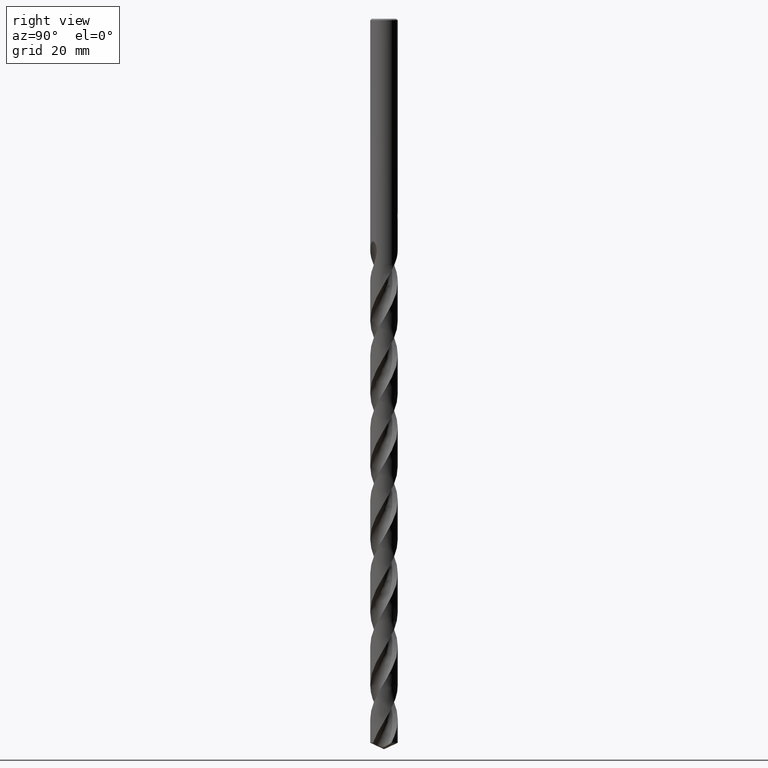
[diagram: clean part render]
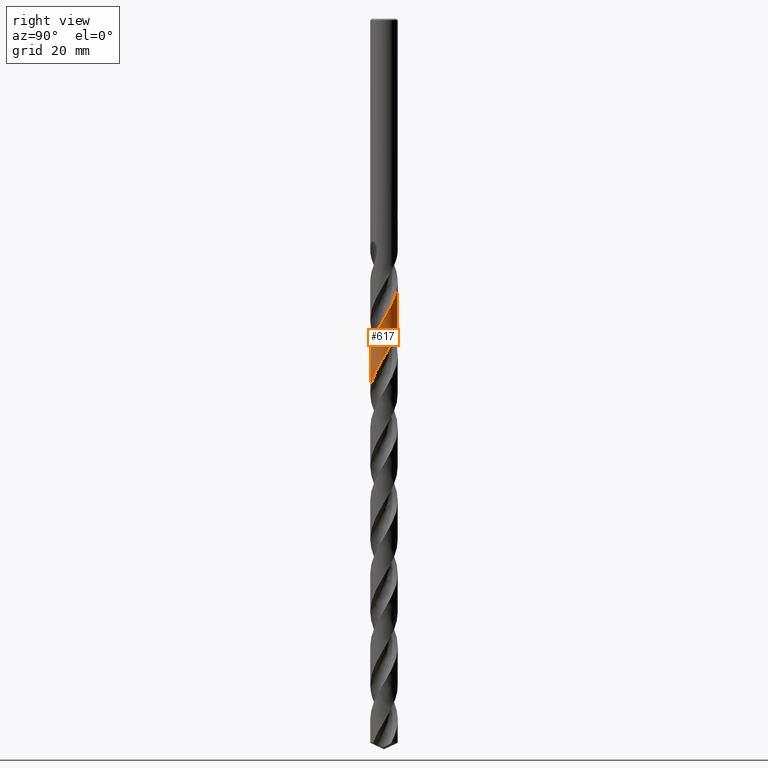
[diagram: same view with one face highlighted and labeled with its STEP entity id]
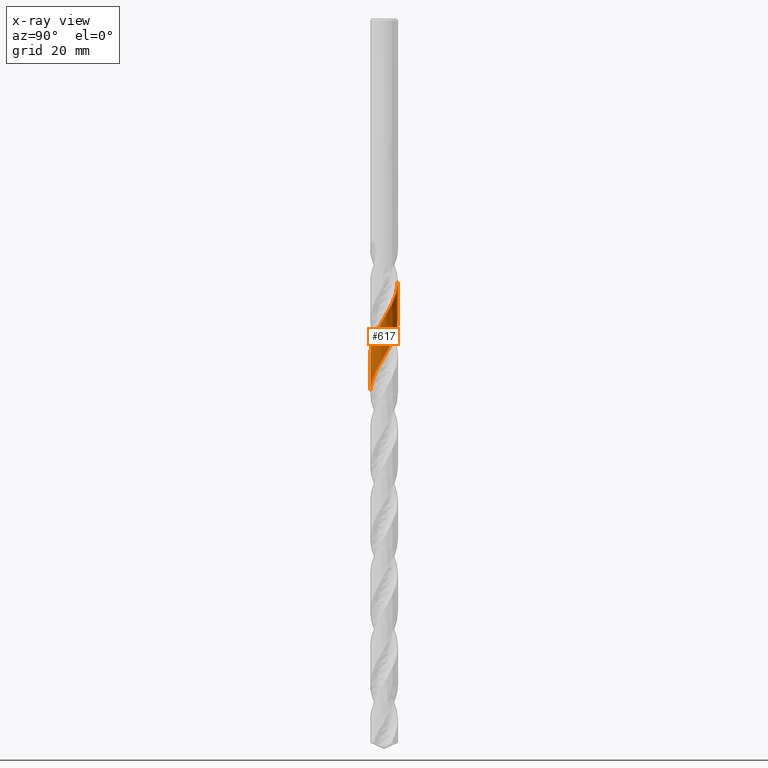
[diagram: x-ray of the same camera — body ghosted, the highlighted face saturated]
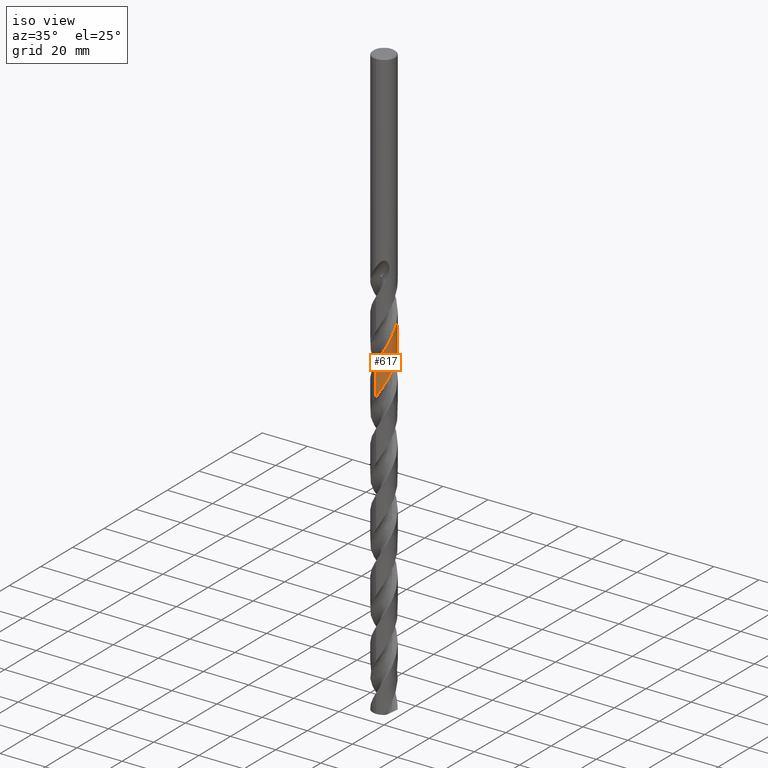
[diagram: same view with one face highlighted and labeled with its STEP entity id]
A machine part, right view. The second image highlights one B-rep face of the part: STEP entity #617.
The next image is the same camera in x-ray: the body ghosted, the highlighted face saturated — about 0% of this face is hidden behind the body in this view.
A second angle (iso view) of the same face is appended — the face is thin or edge-on in the first view.
In plain terms, the highlighted conical surface has half-angle 0 deg.
Its self-contained STEP definition (entity closure, byte-faithful):
#409=VERTEX_POINT('',#991);
#465=EDGE_CURVE('',#487,#759,#1052,.T.);
#487=VERTEX_POINT('',#1076);
#491=EDGE_CURVE('',#487,#717,#1081,.T.);
#617=ADVANCED_FACE('',(#1222),#1223,.T.);
#717=VERTEX_POINT('',#1329);
#759=VERTEX_POINT('',#1373);
#787=EDGE_CURVE('',#409,#759,#1403,.T.);
#793=EDGE_CURVE('',#409,#717,#1410,.T.);
#991=CARTESIAN_POINT('',(-1.4935187773732E-013,-4.99992699948129,-135.88958383686));
#1052=LINE('',#9736,#9737);
#1076=CARTESIAN_POINT('',(8.67444209216233E-013,4.99990373844456,-95.4924991398016));
#1081=B_SPLINE_CURVE_WITH_KNOTS('',3,(#10122,#10123,#10124,#10125,#10126,#10127,#10128,#10129,#10130,#10131,#10132,#10133,#10134,#10135,#10136,#10137,#10138,#10139,#10140,#10141,#10142,#10143,#10144,#10145,#10146,#10147,#10148,#10149,#10150,#10151,#10152,#10153,#10154,#10155,#10156,#10157,#10158,#10159,#10160,#10161,#10162,#10163,#10164,#10165,#10166,#10167,#10168,#10169,#10170,#10171,#10172,#10173,#10174,#10175,#10176,#10177,#10178,#10179,#10180,#10181,#10182,#10183,#10184,#10185,#10186,#10187,#10188,#10189,#10190,#10191,#10192,#10193,#10194,#10195,#10196,#10197,#10198,#10199,#10200,#10201,#10202,#10203,#10204,#10205,#10206,#10207,#10208,#10209,#10210,#10211,#10212,#10213,#10214,#10215,#10216,#10217,#10218,#10219,#10220,#10221,#10222,#10223,#10224,#10225,#10226,#10227,#10228,#10229,#10230,#10231,#10232,#10233,#10234,#10235,#10236,#10237,#10238,#10239,#10240,#10241,#10242,#10243,#10244,#10245,#10246,#10247,#10248,#10249,#10250,#10251,#10252,#10253,#10254,#10255,#10256,#10257,#10258,#10259,#10260,#10261,#10262,#10263,#10264,#10265,#10266,#10267,#10268,#10269,#10270,#10271,#10272,#10273,#10274,#10275,#10276,#10277,#10278,#10279,#10280,#10281,#10282,#10283,#10284,#10285,#10286,#10287,#10288,#10289,#10290,#10291,#10292,#10293,#10294,#10295,#10296,#10297,#10298,#10299,#10300,#10301,#10302,#10303,#10304,#10305,#10306,#10307,#10308,#10309,#10310,#10311,#10312,#10313,#10314,#10315,#10316,#10317,#10318,#10319,#10320,#10321,#10322,#10323,#10324,#10325,#10326,#10327,#10328,#10329,#10330,#10331,#10332,#10333,#10334,#10335,#10336,#10337,#10338,#10339,#10340,#10341,#10342,#10343,#10344,#10345,#10346,#10347,#10348,#10349,#10350,#10351,#10352,#10353,#10354,#10355,#10356,#10357,#10358,#10359,#10360,#10361,#10362,#10363,#10364,#10365,#10366,#10367,#10368,#10369,#10370,#10371,#10372,#10373,#10374,#10375,#10376,#10377,#10378,#10379,#10380,#10381,#10382,#10383,#10384,#10385,#10386,#10387,#10388,#10389,#10390,#10391,#10392,#10393,#10394,#10395,#10396,#10397,#10398,#10399,#10400,#10401,#10402,#10403,#10404,#10405,#10406,#10407,#10408,#10409,#10410,#10411,#10412,#10413,#10414,#10415,#10416,#10417,#10418,#10419,#10420,#10421,#10422,#10423,#10424,#10425,#10426,#10427,#10428,#10429),.UNSPECIFIED.,.F.,.F.,(4,2,2,2,2,2,2,2,2,2,2,2,2,2,2,2,2,2,2,2,2,2,2,2,2,2,2,2,2,2,2,2,2,2,2,2,2,2,2,2,2,2,2,2,2,2,2,2,2,2,2,2,2,2,2,2,2,2,2,2,2,2,2,2,2,2,2,2,2,2,2,2,2,2,2,2,2,2,2,2,2,2,2,2,2,2,2,2,2,2,2,2,2,2,2,2,2,2,2,2,2,2,2,2,2,2,2,2,2,2,2,2,2,2,2,2,2,2,2,2,2,2,2,2,2,2,2,2,2,2,2,2,2,2,2,2,2,2,2,2,2,2,2,2,2,2,2,2,2,2,2,2,2,4),(0.0,0.435718244585031,0.484115060968319,0.509547161773536,0.526948112551785,0.541206290508845,0.554756776710243,0.569361690684955,0.589321682858434,1.23088287567476,1.33036131656711,1.37777481741036,1.41498431952992,1.45565349463752,1.52114553062346,2.23945389191397,2.49490568903038,2.88014645321808,3.05234110906828,3.19027344903614,3.40695138401048,3.71450316350163,4.08795710124416,4.54635669786202,5.6154591620782,6.66358860422365,7.95430748031894,8.75323194445568,9.88477102001912,12.2947155136351,12.3880066126287,13.8731983278041,14.7676990846338,15.9263431146335,18.1226704372064,19.0106658292183,21.2288938584972,21.6692479653804,23.2748035855574,24.2020378158347,25.1173389812251,27.3469397207913,27.7824081490958,29.3782666520677,30.2711357029553,31.2193269834749,33.4254435768597,34.3054587980385,36.5783908546593,36.9964481058871,38.6450904078381,40.5096725096187,41.8070410819134,42.3362881904903,43.4094630010701,45.360980717729,46.4597744490756,48.3886397044208,49.5258789961715,51.4894783513444,52.5719727168675,54.5211483748533,55.6225196394295,57.5514191862852,58.6875377118123,60.6511378921584,61.7325551394776,63.6800776023219,64.7829406089127,66.7119517926033,67.8468173818095,69.8103374450269,70.8907933232047,72.8366489928689,73.9410419376401,75.870247710226,77.0037193491588,78.9670784697919,80.0466883855986,81.9908688976117,83.0968222379517,85.0263025824829,86.1582461454551,88.1213655216056,89.2002415094524,91.1427432548403,92.2502803913138,94.1801120060365,95.310400202493,97.2732034781779,98.3514540477423,100.292278494473,101.401415121555,103.331671814804,104.460184374184,106.422598141905,107.500327425587,109.439481217646,110.550224902941,112.480976398374,113.607601375202,115.569554993774,116.646863228071,118.584358306142,119.696707977051,121.628019907817,122.752653715447,124.71407913272,125.791062968096,127.72691636973,128.840862803291,130.772796291005,131.895344493309,133.8561769817,134.932928482605,136.867162420109,137.982687354951,139.915298511562,141.035676255576,142.995853952872,144.072461363443,146.005103051353,147.122179722644,149.055519249508,150.173651585641,152.133115216936,153.209663509201,155.140745193271,156.259337848963,158.193450489082,159.309273412969,161.267967680424,162.344536628702,164.274092534919,165.394159968479,167.329092565995,168.442545055748,170.400401971103,171.477069787703,173.405132756468,174.526720728242,176.462785047237,177.57310678739,179.528140299061,180.608546616205,182.543279619916,183.651287084132,185.553809243366,186.722823471459,189.052467859425,189.454484555321,190.86835633027,191.77812971106,192.696222976878),.UNSPECIFIED.);
#1222=FACE_OUTER_BOUND('',#13193,.T.);
#1223=CONICAL_SURFACE('',#13194,4.99995,5.75809787312949E-007);
#1329=CARTESIAN_POINT('',(-1.47017134881061E-015,-4.99991897141173,-121.947358917492));
#1373=CARTESIAN_POINT('',(-4.74699942082194E-015,4.9999117660298,-109.433882966212));
#1403=B_SPLINE_CURVE_WITH_KNOTS('',3,(#16026,#16027,#16028,#16029,#16030,#16031,#16032,#16033,#16034,#16035,#16036,#16037,#16038,#16039,#16040,#16041,#16042,#16043,#16044,#16045,#16046,#16047,#16048,#16049,#16050,#16051,#16052,#16053,#16054,#16055,#16056,#16057,#16058,#16059,#16060,#16061,#16062,#16063,#16064,#16065,#16066,#16067,#16068,#16069,#16070,#16071,#16072,#16073,#16074,#16075,#16076,#16077,#16078,#16079,#16080,#16081,#16082,#16083,#16084,#16085,#16086,#16087,#16088,#16089,#16090,#16091,#16092,#16093,#16094,#16095,#16096,#16097,#16098,#16099,#16100,#16101,#16102,#16103,#16104,#16105,#16106,#16107,#16108,#16109,#16110,#16111,#16112,#16113,#16114,#16115,#16116,#16117,#16118,#16119,#16120,#16121,#16122,#16123,#16124,#16125,#16126,#16127,#16128,#16129,#16130,#16131,#16132,#16133,#16134,#16135,#16136,#16137,#16138,#16139,#16140,#16141,#16142,#16143,#16144,#16145,#16146,#16147,#16148,#16149,#16150,#16151,#16152,#16153,#16154,#16155,#16156,#16157,#16158,#16159,#16160,#16161,#16162,#16163,#16164,#16165,#16166,#16167,#16168,#16169,#16170,#16171,#16172,#16173,#16174,#16175,#16176,#16177,#16178,#16179,#16180,#16181,#16182,#16183,#16184,#16185,#16186,#16187,#16188,#16189,#16190,#16191,#16192,#16193,#16194,#16195,#16196,#16197,#16198,#16199,#16200,#16201,#16202,#16203,#16204,#16205,#16206,#16207,#16208,#16209,#16210,#16211,#16212,#16213,#16214,#16215,#16216,#16217,#16218,#16219,#16220,#16221,#16222,#16223,#16224,#16225,#16226,#16227,#16228,#16229,#16230,#16231,#16232,#16233,#16234,#16235,#16236,#16237,#16238,#16239,#16240,#16241,#16242,#16243,#16244,#16245,#16246,#16247,#16248,#16249,#16250,#16251,#16252,#16253,#16254,#16255,#16256,#16257,#16258,#16259,#16260,#16261,#16262,#16263,#16264,#16265,#16266,#16267,#16268,#16269,#16270,#16271,#16272,#16273,#16274,#16275,#16276,#16277,#16278,#16279,#16280,#16281,#16282,#16283,#16284,#16285,#16286,#16287,#16288,#16289,#16290,#16291,#16292,#16293,#16294,#16295,#16296,#16297,#16298,#16299,#16300,#16301,#16302,#16303,#16304,#16305,#16306,#16307,#16308,#16309,#16310,#16311,#16312,#16313,#16314,#16315,#16316,#16317,#16318,#16319,#16320,#16321),.UNSPECIFIED.,.F.,.F.,(4,2,2,2,2,2,2,2,2,2,2,2,2,2,2,2,2,2,2,2,2,2,2,2,2,2,2,2,2,2,2,2,2,2,2,2,2,2,2,2,2,2,2,2,2,2,2,2,2,2,2,2,2,2,2,2,2,2,2,2,2,2,2,2,2,2,2,2,2,2,2,2,2,2,2,2,2,2,2,2,2,2,2,2,2,2,2,2,2,2,2,2,2,2,2,2,2,2,2,2,2,2,2,2,2,2,2,2,2,2,2,2,2,2,2,2,2,2,2,2,2,2,2,2,2,2,2,2,2,2,2,2,2,2,2,2,2,2,2,2,2,2,2,2,2,2,2,4),(0.0,3.63092045738316,3.76916193885586,6.03348470778604,8.04692963287805,9.1553045800552,10.6858758579774,12.3196856508466,14.6151228543069,16.024435785243,17.5369031951534,19.7463248661141,19.8237305261418,22.1584827281911,23.5721104147942,24.8866404650494,27.1544839721269,29.2984053452706,29.3766805252054,31.6731811596563,33.1360060317946,34.4519546405972,36.6689529857119,38.1363260768863,39.635351245708,40.9944135406578,41.6931452725307,42.4671765550298,43.9206440687782,44.6941045309783,46.1432547306018,47.6348495669091,49.8940466167516,51.6284642345732,51.7858807472319,54.1712195073922,55.6732717725856,57.9714588357184,58.1318691472022,60.4684983534327,61.8981185708373,63.2291073761004,65.8958314270073,67.559272495795,67.7188748784987,70.0708468598854,71.5165820744635,72.9511099038995,73.4962191357789,74.9730690717979,76.4316141630787,77.9066461203584,79.3684072784305,80.0421479452694,80.7960609775947,82.2744112272234,84.5146017275254,86.0568462364468,87.4199915349269,88.7297549152658,89.391828480577,90.5065844603605,92.1273317466116,92.8340723769178,93.583211059707,95.0868400981892,97.3608637575622,98.8541343589686,100.234479889895,101.586457182187,102.327736058763,103.105370605082,105.906778053553,106.06715147118,108.420951105879,109.89983580632,111.435091641284,113.719995381445,115.13253333497,115.887180879951,118.583276421057,119.280358107793,120.858204307852,121.560405127107,122.319362584216,125.051386301657,125.393031385661,127.8530579985,129.182506410346,130.663459530093,133.086164701429,134.51682009706,135.280867866072,136.754794579141,139.051630208203,140.539422114528,141.92786532,143.250202241799,145.575961457431,146.678207256176,149.275290921438,150.702720728012,151.424119588711,152.981197660303,155.243651860265,156.354602901283,158.642237577714,160.031414739876,161.373186235016,162.736500290042,164.348510698604,165.968364510125,168.542090162884,169.559765216219,170.856228849685,172.1861625982,174.663900187947,175.790487761648,176.441182421034,177.173323473632,178.71230134711,181.00737350552,183.087791848774,183.413482285452,185.983261332298,186.787471516701,188.270575471459,189.121435970036,190.600475925247,191.960868233357,194.394745964169,194.718576604657,197.749478739512,198.505925563519,198.564205547254,199.002836304895,199.364118057148,199.59047819011,200.015335436858,200.622507709534,201.106238512391,201.194998739443,201.248511641076,201.305038434025,201.392088668999,201.652886823243,202.061841828865,202.718734976694),.UNSPECIFIED.);
#1410=LINE('',#16635,#16636);
#9736=CARTESIAN_POINT('',(-6.12219326798919E-016,4.99995,-175.834230854612));
#9737=VECTOR('',#18471,1.0);
#10122=CARTESIAN_POINT('',(-3.47531599367033,3.59460412047406,-89.005));
#10123=CARTESIAN_POINT('',(-3.42468505081887,3.64355496047389,-89.1320228739977));
#10124=CARTESIAN_POINT('',(-3.37260652016768,3.69184736805069,-89.2594740710527));
#10125=CARTESIAN_POINT('',(-3.31262006262031,3.7450787587917,-89.4010412985137));
#10126=CARTESIAN_POINT('',(-3.30660280339091,3.75039263800871,-89.4151869308565));
#10127=CARTESIAN_POINT('',(-3.29739019180853,3.75848883156676,-89.4367588850358));
#10128=CARTESIAN_POINT('',(-3.29421096098873,3.76127566307644,-89.4441878597196));
#10129=CARTESIAN_POINT('',(-3.2888463694803,3.76596608828876,-89.4566972541646));
#10130=CARTESIAN_POINT('',(-3.28666428057786,3.76787061524773,-89.4617782895618));
#10131=CARTESIAN_POINT('',(-3.28268910608387,3.7713340601257,-89.4710212915336));
#10132=CARTESIAN_POINT('',(-3.28089698469266,3.77289323590485,-89.4751834092989));
#10133=CARTESIAN_POINT('',(-3.27739801346085,3.775933017823,-89.483300034577));
#10134=CARTESIAN_POINT('',(-3.27569138038618,3.77741365290572,-89.4872545138104));
#10135=CARTESIAN_POINT('',(-3.27214176229517,3.78048900084448,-89.4954701876824));
#10136=CARTESIAN_POINT('',(-3.27029854153303,3.78208359005972,-89.4997312105317));
#10137=CARTESIAN_POINT('',(-3.26593154073427,3.78585594305489,-89.5098142861441));
#10138=CARTESIAN_POINT('',(-3.26340612411988,3.78803307530223,-89.515635635492));
#10139=CARTESIAN_POINT('',(-3.17958339550318,3.86014945641344,-89.7085348501207));
#10140=CARTESIAN_POINT('',(-3.09606539726341,3.92754428769936,-89.8905348285023));
#10141=CARTESIAN_POINT('',(-2.99406802839043,4.00435472959701,-90.1027749970887));
#10142=CARTESIAN_POINT('',(-2.98029975897447,4.01461280061151,-90.1312317362874));
#10143=CARTESIAN_POINT('',(-2.95984708488746,4.02968724055971,-90.1732416129077));
#10144=CARTESIAN_POINT('',(-2.95322854176247,4.03454030761042,-90.186796015465));
#10145=CARTESIAN_POINT('',(-2.94138463137374,4.04318005873176,-90.2109833089716));
#10146=CARTESIAN_POINT('',(-2.93616665413547,4.04697097466858,-90.2216157839944));
#10147=CARTESIAN_POINT('',(-2.9252238457296,4.05488870077216,-90.2438662111709));
#10148=CARTESIAN_POINT('',(-2.91949771156033,4.0590134527432,-90.2554824212455));
#10149=CARTESIAN_POINT('',(-2.90451921779952,4.06975488483921,-90.2858011575235));
#10150=CARTESIAN_POINT('',(-2.89525019562132,4.07635419045374,-90.3044965333719));
#10151=CARTESIAN_POINT('',(-2.78396691711099,4.15501316081761,-90.5282219539086));
#10152=CARTESIAN_POINT('',(-2.67842203103139,4.2239286967281,-90.7349168658022));
#10153=CARTESIAN_POINT('',(-2.52897783219522,4.31339432760576,-91.0243988756073));
#10154=CARTESIAN_POINT('',(-2.48977032252504,4.33614372485311,-91.1000348483832));
#10155=CARTESIAN_POINT('',(-2.38990053424511,4.39228119476851,-91.292173168053));
#10156=CARTESIAN_POINT('',(-2.32931224660678,4.42470453356551,-91.408139158417));
#10157=CARTESIAN_POINT('',(-2.24098441412819,4.46966901336798,-91.5757629837237));
#10158=CARTESIAN_POINT('',(-2.21358287537642,4.48330256780603,-91.6275693505206));
#10159=CARTESIAN_POINT('',(-2.16402990283814,4.50739290307737,-91.720856826479));
#10160=CARTESIAN_POINT('',(-2.14191155688319,4.51794548624368,-91.7623526012764));
#10161=CARTESIAN_POINT('',(-2.08484764516552,4.54465719160618,-91.8690337757107));
#10162=CARTESIAN_POINT('',(-2.04978472209444,4.56057923821253,-91.9342266624314));
#10163=CARTESIAN_POINT('',(-1.96449771479029,4.5981251946828,-92.0919138564434));
#10164=CARTESIAN_POINT('',(-1.9140640465881,4.61934798423115,-92.1844246286096));
#10165=CARTESIAN_POINT('',(-1.80154470765945,4.66453401691002,-92.3891575131925));
#10166=CARTESIAN_POINT('',(-1.73939284859127,4.68806595645128,-92.5010989362673));
#10167=CARTESIAN_POINT('',(-1.59972611920222,4.73778133992949,-92.7506918574156));
#10168=CARTESIAN_POINT('',(-1.5220763313845,4.76329601066902,-92.8881261171468));
#10169=CARTESIAN_POINT('',(-1.2612741388465,4.84195861088783,-93.3463390222096));
#10170=CARTESIAN_POINT('',(-1.07579476903563,4.88651162741719,-93.6667053690266));
#10171=CARTESIAN_POINT('',(-0.70446639080806,4.95354929783398,-94.3019570194482));
#10172=CARTESIAN_POINT('',(-0.519034926765091,4.97638862767784,-94.6164793194427));
#10173=CARTESIAN_POINT('',(-0.103635167500438,5.00410655559904,-95.3184191918231));
#10174=CARTESIAN_POINT('',(0.126526154915741,5.00359360035337,-95.7051166141115));
#10175=CARTESIAN_POINT('',(0.498013034195727,4.97707748150715,-96.3319315001113));
#10176=CARTESIAN_POINT('',(0.639528723484639,4.96087821623571,-96.5714704121131));
#10177=CARTESIAN_POINT('',(0.979301456105437,4.90720582475836,-97.1505822568858));
#10178=CARTESIAN_POINT('',(1.17628446672742,4.86374203184323,-97.4897625820577));
#10179=CARTESIAN_POINT('',(1.78265558998682,4.6909784138133,-98.5524844663466));
#10180=CARTESIAN_POINT('',(2.17865502767563,4.52072753337644,-99.2724119743668));
#10181=CARTESIAN_POINT('',(2.5624807798167,4.29337072105549,-100.023284648702));
#10182=CARTESIAN_POINT('',(2.57674114782507,4.28482730368809,-100.051267443078));
#10183=CARTESIAN_POINT('',(2.81729113626466,4.13907835953697,-100.524781967647));
#10184=CARTESIAN_POINT('',(3.0323323434162,3.98421990332773,-100.970191759009));
#10185=CARTESIAN_POINT('',(3.35558293920989,3.71005664761316,-101.684220544416));
#10186=CARTESIAN_POINT('',(3.47212377865768,3.60122763084523,-101.952419145222));
#10187=CARTESIAN_POINT('',(3.72729101483938,3.33901356013596,-102.568356374614));
#10188=CARTESIAN_POINT('',(3.86193405300012,3.18231435681845,-102.91541353244));
#10189=CARTESIAN_POINT('',(4.22256676825437,2.70592234302835,-103.922179158727));
#10190=CARTESIAN_POINT('',(4.42134165447849,2.36729097376634,-104.579188983351));
#10191=CARTESIAN_POINT('',(4.6422065040908,1.86388388920349,-105.504508465044));
#10192=CARTESIAN_POINT('',(4.69885191537736,1.71607102832597,-105.770732230806));
#10193=CARTESIAN_POINT('',(4.87211121610851,1.1906782354631,-106.702912582662));
#10194=CARTESIAN_POINT('',(4.95098551703927,0.801979490081955,-107.366440745602));
#10195=CARTESIAN_POINT('',(4.98964657863562,0.329693577200713,-108.164083755565));
#10196=CARTESIAN_POINT('',(4.99420603425735,0.2513442343594,-108.296141498613));
#10197=CARTESIAN_POINT('',(5.00681473452717,-0.112989337697959,-108.910093671169));
#10198=CARTESIAN_POINT('',(4.99215087214397,-0.399243284274854,-109.391604112653));
#10199=CARTESIAN_POINT('',(4.9305319411147,-0.846330288067592,-110.151729781378));
#10200=CARTESIAN_POINT('',(4.89986999887433,-1.00882063886545,-110.429762117157));
#10201=CARTESIAN_POINT('',(4.82304075521522,-1.3281669455258,-110.982645136899));
#10202=CARTESIAN_POINT('',(4.77714760696995,-1.48478089090375,-111.257083984282));
#10203=CARTESIAN_POINT('',(4.59352201772887,-2.01406032560235,-112.201050949729));
#10204=CARTESIAN_POINT('',(4.41903435996506,-2.37260779244288,-112.868065446026));
#10205=CARTESIAN_POINT('',(4.16181881270679,-2.77208102949067,-113.667804711739));
#10206=CARTESIAN_POINT('',(4.11828547259934,-2.8363516759449,-113.79842287414));
#10207=CARTESIAN_POINT('',(3.90833795234767,-3.131282978148,-114.408117051102));
#10208=CARTESIAN_POINT('',(3.7239191270887,-3.34850225604016,-114.886824811352));
#10209=CARTESIAN_POINT('',(3.4091005894106,-3.66094362096452,-115.633876001165));
#10210=CARTESIAN_POINT('',(3.29084402899773,-3.76760454005383,-115.901675539602));
#10211=CARTESIAN_POINT('',(3.03687029292154,-3.97557018074077,-116.454226119166));
#10212=CARTESIAN_POINT('',(2.90077044519101,-4.07593329555456,-116.738547202599));
#10213=CARTESIAN_POINT('',(2.43213369350182,-4.38615966136368,-117.685528839927));
#10214=CARTESIAN_POINT('',(2.07978661954961,-4.56381437835556,-118.345738501177));
#10215=CARTESIAN_POINT('',(1.56268252657829,-4.75203331210102,-119.27202388923));
#10216=CARTESIAN_POINT('',(1.41284300984643,-4.79871207501344,-119.535992480902));
#10217=CARTESIAN_POINT('',(0.869208887248252,-4.94041277970991,-120.482617392629));
#10218=CARTESIAN_POINT('',(0.466180762513919,-4.99461074021498,-121.162607846953));
#10219=CARTESIAN_POINT('',(-0.0136410865950173,-5.00045609708932,-121.97032574982));
#10220=CARTESIAN_POINT('',(-0.0881747232660342,-4.99969690447061,-122.095763161574));
#10221=CARTESIAN_POINT('',(-0.456379080907655,-4.9877125922911,-122.71624629366));
#10222=CARTESIAN_POINT('',(-0.748720246235105,-4.95227235392374,-123.210833185146));
#10223=CARTESIAN_POINT('',(-1.36144971260586,-4.82246369927077,-124.265653618446));
#10224=CARTESIAN_POINT('',(-1.67889111693472,-4.72132832300412,-124.823390180501));
#10225=CARTESIAN_POINT('',(-2.19611576570614,-4.49774837133195,-125.772904486855));
#10226=CARTESIAN_POINT('',(-2.40177396873304,-4.39137835848265,-126.162156995746));
#10227=CARTESIAN_POINT('',(-2.67998375323915,-4.22206214232802,-126.710590832725));
#10228=CARTESIAN_POINT('',(-2.75919827788762,-4.17072560921418,-126.869446285896));
#10229=CARTESIAN_POINT('',(-2.9945260575899,-4.00857413795467,-127.350521567164));
#10230=CARTESIAN_POINT('',(-3.14570728974164,-3.89105822755038,-127.672277355112));
#10231=CARTESIAN_POINT('',(-3.55167647361635,-3.53635447604263,-128.580609916308));
#10232=CARTESIAN_POINT('',(-3.78911212739151,-3.28070343899186,-129.165365986535));
#10233=CARTESIAN_POINT('',(-4.1158076129123,-2.84565857141222,-130.081200287285));
#10234=CARTESIAN_POINT('',(-4.22413235527976,-2.68221996074901,-130.410633907457));
#10235=CARTESIAN_POINT('',(-4.49536376572682,-2.21566152501395,-131.319937852834));
#10236=CARTESIAN_POINT('',(-4.63710588588345,-1.90128089412171,-131.898017837206));
#10237=CARTESIAN_POINT('',(-4.8093550881911,-1.38220994254965,-132.818684447312));
#10238=CARTESIAN_POINT('',(-4.86144577285735,-1.1860424981963,-133.159647607489));
#10239=CARTESIAN_POINT('',(-4.97059653825457,-0.644168251450184,-134.091011751476));
#10240=CARTESIAN_POINT('',(-5.0035172942571,-0.294581956121542,-134.67946328891));
#10241=CARTESIAN_POINT('',(-4.9974661722757,0.248777421891406,-135.594189221195));
#10242=CARTESIAN_POINT('',(-4.98413261603417,0.441514868797864,-135.918812803135));
#10243=CARTESIAN_POINT('',(-4.91571311087664,0.977646546883962,-136.829473755114));
#10244=CARTESIAN_POINT('',(-4.83589008141565,1.31695544602317,-137.413682301875));
#10245=CARTESIAN_POINT('',(-4.65679871687426,1.830879128958,-138.329822357452));
#10246=CARTESIAN_POINT('',(-4.58128266565648,2.01238532156885,-138.66011081078));
#10247=CARTESIAN_POINT('',(-4.34475509983313,2.49813268757535,-139.570432427686));
#10248=CARTESIAN_POINT('',(-4.1626366279769,2.79109099542263,-140.148669605773));
#10249=CARTESIAN_POINT('',(-3.82762076170681,3.22330692924373,-141.069245682816));
#10250=CARTESIAN_POINT('',(-3.69385679900069,3.37576086437995,-141.409961009318));
#10251=CARTESIAN_POINT('',(-3.30478981131645,3.76832292466406,-142.3412270799));
#10252=CARTESIAN_POINT('',(-3.03278735052023,3.99052322178478,-142.92982808665));
#10253=CARTESIAN_POINT('',(-2.5782753924011,4.2882451964358,-143.844464690318));
#10254=CARTESIAN_POINT('',(-2.41093210527554,4.38450820925879,-144.168848727337));
#10255=CARTESIAN_POINT('',(-1.9279565970969,4.62632859496668,-145.078922554091));
#10256=CARTESIAN_POINT('',(-1.6019406900982,4.74909411416516,-145.662788054396));
#10257=CARTESIAN_POINT('',(-1.07532621582527,4.88689453631888,-146.579114625469));
#10258=CARTESIAN_POINT('',(-0.882224347362186,4.92541344773481,-146.909933672276));
#10259=CARTESIAN_POINT('',(-0.346660396384896,4.99975122606779,-147.820970407359));
#10260=CARTESIAN_POINT('',(-0.00180888002815927,5.01177129694473,-148.399387817308));
#10261=CARTESIAN_POINT('',(0.54370139879345,4.97441002225403,-149.319856761168));
#10262=CARTESIAN_POINT('',(0.744659746336682,4.94831278817893,-149.660284562052));
#10263=CARTESIAN_POINT('',(1.28733862673382,4.84404306659718,-150.591388401855));
#10264=CARTESIAN_POINT('',(1.62348893325342,4.74198894311476,-151.18011484876));
#10265=CARTESIAN_POINT('',(2.12393232044449,4.53050359785445,-152.094672499715));
#10266=CARTESIAN_POINT('',(2.29700813276759,4.44525139843564,-152.418851468163));
#10267=CARTESIAN_POINT('',(2.76666916300384,4.17915992888558,-153.328368532548));
#10268=CARTESIAN_POINT('',(3.0501328323123,3.97702165464256,-153.911886751959));
#10269=CARTESIAN_POINT('',(3.45816306715033,3.6165381003137,-154.828407298141));
#10270=CARTESIAN_POINT('',(3.59799503828504,3.47744503397218,-155.159768640299));
#10271=CARTESIAN_POINT('',(3.95845735655538,3.0738303942688,-156.071557224707));
#10272=CARTESIAN_POINT('',(4.1606663148347,2.79407284254524,-156.650179590489));
#10273=CARTESIAN_POINT('',(4.43355291859913,2.32033244622634,-157.5705238161));
#10274=CARTESIAN_POINT('',(4.52377492696287,2.13909933532653,-157.910621723956));
#10275=CARTESIAN_POINT('',(4.73956761425011,1.63051628038373,-158.841496505426));
#10276=CARTESIAN_POINT('',(4.84217078115111,1.29446832217281,-159.43032438196));
#10277=CARTESIAN_POINT('',(4.94542835599059,0.761116388330279,-160.3448133984));
#10278=CARTESIAN_POINT('',(4.97107800682185,0.569998459123866,-160.668821700644));
#10279=CARTESIAN_POINT('',(5.01185701376665,0.0320509344922367,-161.577813860196));
#10280=CARTESIAN_POINT('',(5.00202091556826,-0.315752922142521,-162.160982118211));
#10281=CARTESIAN_POINT('',(4.93015395036746,-0.855569413792833,-163.07770335136));
#10282=CARTESIAN_POINT('',(4.89253390677194,-1.04951487644901,-163.409616383204));
#10283=CARTESIAN_POINT('',(4.75813982813582,-1.574187213463,-164.322190357928));
#10284=CARTESIAN_POINT('',(4.63846012831351,-1.89810885265032,-164.901041540262));
#10285=CARTESIAN_POINT('',(4.39714849391343,-2.38859320196563,-165.821244629696));
#10286=CARTESIAN_POINT('',(4.2970432504344,-2.5643055967453,-166.160972305839));
#10287=CARTESIAN_POINT('',(3.99510652546842,-3.02676214302634,-167.091553832129));
#10288=CARTESIAN_POINT('',(3.77322267960511,-3.29926317856547,-167.680459713159));
#10289=CARTESIAN_POINT('',(3.38792462245079,-3.68219264359693,-168.594890017269));
#10290=CARTESIAN_POINT('',(3.24358958494998,-3.80994193234132,-168.918761074677));
#10291=CARTESIAN_POINT('',(2.81988058677412,-4.14341803777718,-169.827260628003));
#10292=CARTESIAN_POINT('',(2.5258044028387,-4.32898676646473,-170.410077656902));
#10293=CARTESIAN_POINT('',(2.03745733997253,-4.57026956319358,-171.327005601345));
#10294=CARTESIAN_POINT('',(1.85515053723005,-4.64725350764564,-171.659477611529));
#10295=CARTESIAN_POINT('',(1.34414109010901,-4.82818768390965,-172.572867433942));
#10296=CARTESIAN_POINT('',(1.00832984316627,-4.9093331913675,-173.151970334562));
#10297=CARTESIAN_POINT('',(0.466671477821541,-4.98221428547001,-174.072016926892));
#10298=CARTESIAN_POINT('',(0.265229011737217,-4.9969837577725,-174.411336047304));
#10299=CARTESIAN_POINT('',(-0.286813662700959,-5.00399583500092,-175.341562865588));
#10300=CARTESIAN_POINT('',(-0.636763181709813,-4.97161450632109,-175.930524037696));
#10301=CARTESIAN_POINT('',(-1.16940850900497,-4.86508820457209,-176.844905236036));
#10302=CARTESIAN_POINT('',(-1.35585680084816,-4.81645168534857,-177.168671442245));
#10303=CARTESIAN_POINT('',(-1.86861919064418,-4.65057024781432,-178.076711179968));
#10304=CARTESIAN_POINT('',(-2.18640213090441,-4.50991811044037,-178.659177221798));
#10305=CARTESIAN_POINT('',(-2.65904034447961,-4.23890096962448,-179.576317114546));
#10306=CARTESIAN_POINT('',(-2.8248451322222,-4.13025171509377,-179.909353089379));
#10307=CARTESIAN_POINT('',(-3.26023897625427,-3.80645690122317,-180.823586053141));
#10308=CARTESIAN_POINT('',(-3.51485516623266,-3.57270705357745,-181.402962731612));
#10309=CARTESIAN_POINT('',(-3.87709673996685,-3.16359017911754,-182.322838698064));
#10310=CARTESIAN_POINT('',(-4.00144467856722,-3.00475859516592,-182.661713010992));
#10311=CARTESIAN_POINT('',(-4.31477383667996,-2.55049507502643,-183.591526621871));
#10312=CARTESIAN_POINT('',(-4.48291701775076,-2.24185976265824,-184.180521233147));
#10313=CARTESIAN_POINT('',(-4.6912869428861,-1.74024626402575,-185.094862510605));
#10314=CARTESIAN_POINT('',(-4.75479381865117,-1.5583712549179,-185.418554975027));
#10315=CARTESIAN_POINT('',(-4.90275216120143,-1.04041584238453,-186.326167953229));
#10316=CARTESIAN_POINT('',(-4.96305134914507,-0.698383205096803,-186.908284790703));
#10317=CARTESIAN_POINT('',(-5.00149977523615,-0.154785333472409,-187.825640983428));
#10318=CARTESIAN_POINT('',(-5.00369808832412,0.0437731643899113,-188.159243478299));
#10319=CARTESIAN_POINT('',(-4.97742449211564,0.586248390903132,-189.074343223588));
#10320=CARTESIAN_POINT('',(-4.92516472997085,0.928097353923405,-189.654014539861));
#10321=CARTESIAN_POINT('',(-4.7872768286601,1.45674124261206,-190.573707018032));
#10322=CARTESIAN_POINT('',(-4.72476590091086,1.64822740455293,-190.912102736609));
#10323=CARTESIAN_POINT('',(-4.52229849221132,2.16128847943296,-191.841447934588));
#10324=CARTESIAN_POINT('',(-4.35973236204466,2.47290660637257,-192.430454940998));
#10325=CARTESIAN_POINT('',(-4.0593627201348,2.92544734582453,-193.344765150024));
#10326=CARTESIAN_POINT('',(-3.94375597338816,3.07951484031873,-193.668413840591));
#10327=CARTESIAN_POINT('',(-3.59629785432648,3.49084368968142,-194.575633561864));
#10328=CARTESIAN_POINT('',(-3.34607389862795,3.73139530069057,-195.157404555619));
#10329=CARTESIAN_POINT('',(-2.91608354649974,4.06639852744632,-196.074980395096));
#10330=CARTESIAN_POINT('',(-2.75216637812496,4.17907555464755,-196.40914937803));
#10331=CARTESIAN_POINT('',(-2.28662713685245,4.45981565947666,-197.325135731068));
#10332=CARTESIAN_POINT('',(-1.97346916991265,4.60697403540178,-197.905121342818));
#10333=CARTESIAN_POINT('',(-1.45775881635812,4.78695925464786,-198.824618746456));
#10334=CARTESIAN_POINT('',(-1.26421596876768,4.84166807105454,-199.162504561255));
#10335=CARTESIAN_POINT('',(-0.72567994279302,4.95941375505913,-200.091329393809));
#10336=CARTESIAN_POINT('',(-0.37634551548426,4.99809383924062,-200.680328506642));
#10337=CARTESIAN_POINT('',(0.166787651525301,5.00088932238487,-201.594616205833));
#10338=CARTESIAN_POINT('',(0.359130714543561,4.9907606832639,-201.918250040174));
#10339=CARTESIAN_POINT('',(0.894088326196208,4.93151702151247,-202.825110486156));
#10340=CARTESIAN_POINT('',(1.23307355441306,4.85787574660111,-203.406540516295));
#10341=CARTESIAN_POINT('',(1.75100931761542,4.68756738324246,-204.324338429637));
#10342=CARTESIAN_POINT('',(1.93623215385284,4.61413898400797,-204.659071425233));
#10343=CARTESIAN_POINT('',(2.42924526328202,4.38378513661969,-205.5759604141));
#10344=CARTESIAN_POINT('',(2.72610278144048,4.20563189681971,-206.156278648094));
#10345=CARTESIAN_POINT('',(3.16278873587827,3.87772170474155,-207.075570777669));
#10346=CARTESIAN_POINT('',(3.31581641000069,3.74770222152238,-207.412918096019));
#10347=CARTESIAN_POINT('',(3.71346131834957,3.36639833110616,-208.341174328211));
#10348=CARTESIAN_POINT('',(3.94025026439721,3.09790934488582,-208.930146234459));
#10349=CARTESIAN_POINT('',(4.24525497053683,2.64850391155801,-209.844419609797));
#10350=CARTESIAN_POINT('',(4.34404146325059,2.48314747762766,-210.168066155113));
#10351=CARTESIAN_POINT('',(4.59289115630271,2.00611908421341,-211.074601510631));
#10352=CARTESIAN_POINT('',(4.72060561274852,1.68381064501968,-211.655697002028));
#10353=CARTESIAN_POINT('',(4.86793846746651,1.15873941682487,-212.573718252942));
#10354=CARTESIAN_POINT('',(4.9102685738812,0.963699275254546,-212.909010073971));
#10355=CARTESIAN_POINT('',(4.99379720004387,0.425425149209922,-213.826813508407));
#10356=CARTESIAN_POINT('',(5.01127306607182,0.0794422397399454,-214.40748121266));
#10357=CARTESIAN_POINT('',(4.98226282108426,-0.46575528191303,-215.326559239862));
#10358=CARTESIAN_POINT('',(4.95960485570101,-0.66493821081518,-215.663342318946));
#10359=CARTESIAN_POINT('',(4.86466956364948,-1.20724954883777,-216.590985427779));
#10360=CARTESIAN_POINT('',(4.76813698482283,-1.54515787130245,-217.179911653861));
#10361=CARTESIAN_POINT('',(4.56497486322083,-2.04885917142297,-218.094178609487));
#10362=CARTESIAN_POINT('',(4.48272126182565,-2.22305743246544,-218.417864310011));
#10363=CARTESIAN_POINT('',(4.2254025416069,-2.69537540145741,-219.324109140656));
#10364=CARTESIAN_POINT('',(4.02908837592577,-2.98088817956394,-219.904878012686));
#10365=CARTESIAN_POINT('',(3.67518465413325,-3.39598269231532,-220.823122808265));
#10366=CARTESIAN_POINT('',(3.53660462577247,-3.54006498547529,-221.158965712947));
#10367=CARTESIAN_POINT('',(3.13578599249015,-3.90973682197173,-222.077691219225));
#10368=CARTESIAN_POINT('',(2.85804350215989,-4.11715379502003,-222.658723640598));
#10369=CARTESIAN_POINT('',(2.38924404817491,-4.39673641083034,-223.57758008378));
#10370=CARTESIAN_POINT('',(2.21153420101184,-4.48874672552885,-223.913776129054));
#10371=CARTESIAN_POINT('',(1.70869197423681,-4.71199050080017,-224.840765319753));
#10372=CARTESIAN_POINT('',(1.37436170132557,-4.82014463484755,-225.429628149093));
#10373=CARTESIAN_POINT('',(0.84291088526886,-4.93217833939098,-226.343896388153));
#10374=CARTESIAN_POINT('',(0.652393716375037,-4.96096958021028,-226.667646728427));
#10375=CARTESIAN_POINT('',(0.11696926138928,-5.01051989292274,-227.573636154576));
#10376=CARTESIAN_POINT('',(-0.229309465577413,-5.00665362001163,-228.154087830841));
#10377=CARTESIAN_POINT('',(-0.771335348596001,-4.94417828531328,-229.0725551831));
#10378=CARTESIAN_POINT('',(-0.968517830711548,-4.90935657032635,-229.408938727357));
#10379=CARTESIAN_POINT('',(-1.49936007161842,-4.78239685242116,-230.328589432885));
#10380=CARTESIAN_POINT('',(-1.82656496245433,-4.6672511612346,-230.910000051891));
#10381=CARTESIAN_POINT('',(-2.31979438469155,-4.43376084008295,-231.828628925973));
#10382=CARTESIAN_POINT('',(-2.49490056381756,-4.33763818287787,-232.164218406591));
#10383=CARTESIAN_POINT('',(-2.96014883505973,-4.04475165763566,-233.090517348823));
#10384=CARTESIAN_POINT('',(-3.23623707828797,-3.82745976124362,-233.679300237282));
#10385=CARTESIAN_POINT('',(-3.62545043354627,-3.44863148444484,-234.593577100355));
#10386=CARTESIAN_POINT('',(-3.75556837623573,-3.30644989143771,-234.917416027474));
#10387=CARTESIAN_POINT('',(-4.09501633567306,-2.88959392322541,-235.823184224713));
#10388=CARTESIAN_POINT('',(-4.28469891111848,-2.60008434260434,-236.403328721138));
#10389=CARTESIAN_POINT('',(-4.53500528011989,-2.11512600312303,-237.322016587956));
#10390=CARTESIAN_POINT('',(-4.61611137952058,-1.93170860005781,-237.658928677029));
#10391=CARTESIAN_POINT('',(-4.80668124092841,-1.419657059997,-238.579506701204));
#10392=CARTESIAN_POINT('',(-4.89343233452824,-1.08356073410886,-239.161309648264));
#10393=CARTESIAN_POINT('',(-4.97429621656667,-0.544019431300532,-240.079706506149));
#10394=CARTESIAN_POINT('',(-4.99201487217158,-0.345427737025667,-240.41467079105));
#10395=CARTESIAN_POINT('',(-5.00809571421032,0.203666955027278,-241.340240189636));
#10396=CARTESIAN_POINT('',(-4.9815490684759,0.553943366060462,-241.928922737513));
#10397=CARTESIAN_POINT('',(-4.88392772985489,1.08824323227899,-242.843211231073));
#10398=CARTESIAN_POINT('',(-4.83837368933079,1.27558540573376,-243.167162160864));
#10399=CARTESIAN_POINT('',(-4.68145582096669,1.78963897959066,-244.072742485746));
#10400=CARTESIAN_POINT('',(-4.54686714644905,2.10831840688474,-244.652589630944));
#10401=CARTESIAN_POINT('',(-4.28367383614658,2.58657044108066,-245.571521930291));
#10402=CARTESIAN_POINT('',(-4.17640774815366,2.75640670663481,-245.908976885342));
#10403=CARTESIAN_POINT('',(-3.85704876735136,3.20047415949104,-246.830590212946));
#10404=CARTESIAN_POINT('',(-3.62608765953394,3.45998876884984,-247.412877858352));
#10405=CARTESIAN_POINT('',(-3.22322644857509,3.82756270410438,-248.330906679446));
#10406=CARTESIAN_POINT('',(-3.06859023806606,3.95261075420278,-248.665016120357));
#10407=CARTESIAN_POINT('',(-2.62239592546198,4.2714516646929,-249.5890284503));
#10408=CARTESIAN_POINT('',(-2.31715556351583,4.44446059413523,-250.177020896444));
#10409=CARTESIAN_POINT('',(-1.81890152091779,4.6614316927463,-251.091821658304));
#10410=CARTESIAN_POINT('',(-1.63729016786606,4.72827495822857,-251.416980523603));
#10411=CARTESIAN_POINT('',(-1.12107584011628,4.88497286338846,-252.325928179696));
#10412=CARTESIAN_POINT('',(-0.780159311615814,4.95088848850979,-252.907905176813));
#10413=CARTESIAN_POINT('',(-0.237425336469176,4.99829331244179,-253.824983240193));
#10414=CARTESIAN_POINT('',(-0.0390138217172503,5.00377207106451,-254.158437764356));
#10415=CARTESIAN_POINT('',(0.499391900396068,4.98662716991588,-255.066089640151));
#10416=CARTESIAN_POINT('',(0.837772955087651,4.94106686276108,-255.63853750145));
#10417=CARTESIAN_POINT('',(1.37250274071248,4.81248529581217,-256.564405624855));
#10418=CARTESIAN_POINT('',(1.57268583608952,4.75083094614115,-256.916247809297));
#10419=CARTESIAN_POINT('',(2.15834594969927,4.52938588628591,-257.971110147734));
#10420=CARTESIAN_POINT('',(2.52849047729356,4.33367851261534,-258.670738959329));
#10421=CARTESIAN_POINT('',(2.92906330753353,4.05286973373216,-259.494147853274));
#10422=CARTESIAN_POINT('',(2.98709410157933,4.01029043761385,-259.615285091898));
#10423=CARTESIAN_POINT('',(3.24494453524299,3.81239670348453,-260.162836478075));
#10424=CARTESIAN_POINT('',(3.43370230363571,3.64330956991556,-260.589082773774));
#10425=CARTESIAN_POINT('',(3.72153257596149,3.34315686066683,-261.289844445217));
#10426=CARTESIAN_POINT('',(3.8284591443264,3.22016200444623,-261.56399724411));
#10427=CARTESIAN_POINT('',(4.03091150057803,2.96290165319859,-262.115098487271));
#10428=CARTESIAN_POINT('',(4.12617396053888,2.82873388302238,-262.391676479639));
#10429=CARTESIAN_POINT('',(4.21465926898946,2.69010171672401,-262.668461709225));
#13193=EDGE_LOOP('',(#18705,#18706,#18707,#18708));
#13194=AXIS2_PLACEMENT_3D('',#18709,#18710,#18711);
#16026=CARTESIAN_POINT('',(-3.03679725239333,3.97213575395614,-262.668461709225));
#16027=CARTESIAN_POINT('',(-3.52684899039458,3.59747817383969,-261.627153115114));
#16028=CARTESIAN_POINT('',(-3.9424847582049,3.13609302571658,-260.607782174116));
#16029=CARTESIAN_POINT('',(-4.27596657817596,2.59164814037696,-259.52792942513));
#16030=CARTESIAN_POINT('',(-4.28803579661346,2.57162949387975,-259.488358065137));
#16031=CARTESIAN_POINT('',(-4.49556428837438,2.22188710014918,-258.800390386817));
#16032=CARTESIAN_POINT('',(-4.65292241611794,1.87036096191628,-258.15831586026));
#16033=CARTESIAN_POINT('',(-4.87144132404517,1.17729284754137,-256.935592595536));
#16034=CARTESIAN_POINT('',(-4.94054500955113,0.841472575458065,-256.358301160881));
#16035=CARTESIAN_POINT('',(-4.99370750755249,0.313573857344874,-255.466061153967));
#16036=CARTESIAN_POINT('',(-5.0019740765783,0.125242613936801,-255.150007012272));
#16037=CARTESIAN_POINT('',(-4.99631559342286,-0.323153980087217,-254.395765898813));
#16038=CARTESIAN_POINT('',(-4.97275478196966,-0.582226420256522,-253.956789072966));
#16039=CARTESIAN_POINT('',(-4.88284100289404,-1.11109191302836,-253.052481044756));
#16040=CARTESIAN_POINT('',(-4.8137778385806,-1.38001535204621,-252.588010056027));
#16041=CARTESIAN_POINT('',(-4.59467449076795,-2.01017640061333,-251.465944021266));
#16042=CARTESIAN_POINT('',(-4.42414289706021,-2.36195868994292,-250.808490024073));
#16043=CARTESIAN_POINT('',(-4.08559262709566,-2.89225499020551,-249.750627467368));
#16044=CARTESIAN_POINT('',(-3.94258968100353,-3.08431555941978,-249.349646849169));
#16045=CARTESIAN_POINT('',(-3.61908556213788,-3.4594644653956,-248.514916020286));
#16046=CARTESIAN_POINT('',(-3.43682658919446,-3.64062036499042,-248.081211106606));
#16047=CARTESIAN_POINT('',(-2.95553900799453,-4.05036940800916,-247.017653293454));
#16048=CARTESIAN_POINT('',(-2.6438803651413,-4.26022741633016,-246.391873032405));
#16049=CARTESIAN_POINT('',(-2.30083885784486,-4.43916822975663,-245.737616567118));
#16050=CARTESIAN_POINT('',(-2.28916595470865,-4.44519914319462,-245.715404030983));
#16051=CARTESIAN_POINT('',(-1.9234224435332,-4.63232895739534,-245.021013059636));
#16052=CARTESIAN_POINT('',(-1.54867222170768,-4.77079699512118,-244.355948730578));
#16053=CARTESIAN_POINT('',(-0.925994896909184,-4.91942159817078,-243.278538963271));
#16054=CARTESIAN_POINT('',(-0.687704078350918,-4.95833438213793,-242.870763096308));
#16055=CARTESIAN_POINT('',(-0.22426735116045,-4.99998519310716,-242.086671619508));
#16056=CARTESIAN_POINT('',(0.000313900173141007,-5.00502953624609,-241.710182341327));
#16057=CARTESIAN_POINT('',(0.611755727025858,-4.97752549839925,-240.68132131669));
#16058=CARTESIAN_POINT('',(0.995238429729752,-4.91521314547237,-240.028096864049));
#16059=CARTESIAN_POINT('',(1.71981551641965,-4.70915144375294,-238.760673224961));
#16060=CARTESIAN_POINT('',(2.0592390075044,-4.57082321526434,-238.149937324335));
#16061=CARTESIAN_POINT('',(2.39171376430797,-4.39086981592718,-237.510796549858));
#16062=CARTESIAN_POINT('',(2.40338861252499,-4.38449039090962,-237.488296680743));
#16063=CARTESIAN_POINT('',(2.75761155281192,-4.18908989337385,-236.804425175444));
#16064=CARTESIAN_POINT('',(3.07725104177462,-3.96034745965672,-236.149806073066));
#16065=CARTESIAN_POINT('',(3.55208937686802,-3.52774403524444,-235.068972369363));
#16066=CARTESIAN_POINT('',(3.72375260210771,-3.34600913810588,-234.646902253799));
#16067=CARTESIAN_POINT('',(4.02261182431804,-2.97805690803465,-233.848055458789));
#16068=CARTESIAN_POINT('',(4.15236782117328,-2.79432450595744,-233.471066129568));
#16069=CARTESIAN_POINT('',(4.4666051462234,-2.27877441240829,-232.456157608326));
#16070=CARTESIAN_POINT('',(4.62625735518687,-1.93413691084635,-231.81741506762));
#16071=CARTESIAN_POINT('',(4.82441715841015,-1.33701184668696,-230.75867730078));
#16072=CARTESIAN_POINT('',(4.88533951895337,-1.09363196957015,-230.338761418964));
#16073=CARTESIAN_POINT('',(4.9711031428536,-0.59450689036982,-229.486360944362));
#16074=CARTESIAN_POINT('',(4.9949853988016,-0.339598032931715,-229.05402784831));
#16075=CARTESIAN_POINT('',(5.00316677368613,0.147922265400107,-228.232768837404));
#16076=CARTESIAN_POINT('',(4.99093067773661,0.379861913192476,-227.843684192295));
#16077=CARTESIAN_POINT('',(4.94803209425629,0.728709579506841,-227.252694809158));
#16078=CARTESIAN_POINT('',(4.92924453912014,0.84647915970279,-227.052148933485));
#16079=CARTESIAN_POINT('',(4.88087929434126,1.09280160747143,-226.62886556501));
#16080=CARTESIAN_POINT('',(4.85038689287956,1.2210296429961,-226.405913726927));
#16081=CARTESIAN_POINT('',(4.74811988571972,1.58632015191296,-225.765876449585));
#16082=CARTESIAN_POINT('',(4.66369855374725,1.81969844050579,-225.350016076355));
#16083=CARTESIAN_POINT('',(4.50807729647758,2.16667140065206,-224.710855214982));
#16084=CARTESIAN_POINT('',(4.44931495154717,2.28489963593853,-224.489066706373));
#16085=CARTESIAN_POINT('',(4.26737843334509,2.61730812694506,-223.85079367011));
#16086=CARTESIAN_POINT('',(4.13290495458673,2.82488818360735,-223.433121748027));
#16087=CARTESIAN_POINT('',(3.82968975632111,3.22459315753528,-222.58855158797));
#16088=CARTESIAN_POINT('',(3.66062880639127,3.41531142540291,-222.162021369734));
#16089=CARTESIAN_POINT('',(3.20076083855977,3.8605077649771,-221.085029027867));
#16090=CARTESIAN_POINT('',(2.89369445747857,4.09574453760963,-220.4345880928));
#16091=CARTESIAN_POINT('',(2.30809220543584,4.44524253440753,-219.288154980188));
#16092=CARTESIAN_POINT('',(2.04130390386008,4.5738194646976,-218.792908450862));
#16093=CARTESIAN_POINT('',(1.74029819280992,4.68741112748698,-218.249049058486));
#16094=CARTESIAN_POINT('',(1.71517955786634,4.69666090443066,-218.203780726817));
#16095=CARTESIAN_POINT('',(1.30708515121885,4.84321464413692,-217.471068355002));
#16096=CARTESIAN_POINT('',(0.908556193554102,4.93360778526164,-216.791235862732));
#16097=CARTESIAN_POINT('',(0.247486327608431,5.00043917161697,-215.672605323973));
#16098=CARTESIAN_POINT('',(-0.00934044694616781,5.00654984837434,-215.23882010554));
#16099=CARTESIAN_POINT('',(-0.657915543902119,4.97203614468828,-214.145260835691));
#16100=CARTESIAN_POINT('',(-1.04578319923428,4.90504231173502,-213.49039579158));
#16101=CARTESIAN_POINT('',(-1.44748064991632,4.78594398128762,-212.782347713152));
#16102=CARTESIAN_POINT('',(-1.47358772049845,4.77797009188674,-212.736175050333));
#16103=CARTESIAN_POINT('',(-1.87931428921499,4.65040630721975,-212.017325093552));
#16104=CARTESIAN_POINT('',(-2.24380455022505,4.48601191042328,-211.35171627641));
#16105=CARTESIAN_POINT('',(-2.7943719155059,4.15340819165039,-210.269128868371));
#16106=CARTESIAN_POINT('',(-2.99358979999055,4.01218004198476,-209.856715623884));
#16107=CARTESIAN_POINT('',(-3.35685535866019,3.71251437595472,-209.063251735575));
#16108=CARTESIAN_POINT('',(-3.52208829875234,3.55616369994429,-208.682055366978));
#16109=CARTESIAN_POINT('',(-3.98505809146516,3.05394848047602,-207.533797126423));
#16110=CARTESIAN_POINT('',(-4.2465836784084,2.67839850581529,-206.766412453572));
#16111=CARTESIAN_POINT('',(-4.5828603222791,2.01936725491644,-205.522745983241));
#16112=CARTESIAN_POINT('',(-4.68996085426607,1.75615172081552,-205.047309710639));
#16113=CARTESIAN_POINT('',(-4.78215566754186,1.45992810159623,-204.522979982234));
#16114=CARTESIAN_POINT('',(-4.79000576048048,1.43396230687283,-204.477096825617));
#16115=CARTESIAN_POINT('',(-4.91039315749639,1.02371838616933,-203.754510627715));
#16116=CARTESIAN_POINT('',(-4.97671464202945,0.626981383583928,-203.08503061669));
#16117=CARTESIAN_POINT('',(-5.00600781832023,-0.0205241676291479,-201.994037292617));
#16118=CARTESIAN_POINT('',(-4.99890096795154,-0.26723039856618,-201.577206297365));
#16119=CARTESIAN_POINT('',(-4.94856250700842,-0.755783514049957,-200.749812067577));
#16120=CARTESIAN_POINT('',(-4.90565514591315,-0.997085122154288,-200.339404504926));
#16121=CARTESIAN_POINT('',(-4.82220673882371,-1.32462153168336,-199.771054487525));
#16122=CARTESIAN_POINT('',(-4.79673207025456,-1.41408432359538,-199.614607880545));
#16123=CARTESIAN_POINT('',(-4.69313207900051,-1.74285261261659,-199.033797961699));
#16124=CARTESIAN_POINT('',(-4.59940844158503,-1.97702976721552,-198.607998699167));
#16125=CARTESIAN_POINT('',(-4.37856265605767,-2.42689570489089,-197.764637736175));
#16126=CARTESIAN_POINT('',(-4.25229636631497,-2.64189076106175,-197.347303883545));
#16127=CARTESIAN_POINT('',(-3.96720403176484,-3.05357295347188,-196.504499055678));
#16128=CARTESIAN_POINT('',(-3.80860199610454,-3.24922161440517,-196.079176809273));
#16129=CARTESIAN_POINT('',(-3.4648205242456,-3.61341538178595,-195.235482168639));
#16130=CARTESIAN_POINT('',(-3.28029833978015,-3.78173771632571,-194.817316455048));
#16131=CARTESIAN_POINT('',(-2.99330076213093,-4.00661811098713,-194.204155467595));
#16132=CARTESIAN_POINT('',(-2.90043024807362,-4.07434467423044,-194.010812925519));
#16133=CARTESIAN_POINT('',(-2.69909667741763,-4.21081668255496,-193.600582383879));
#16134=CARTESIAN_POINT('',(-2.59017355151616,-4.27867842077431,-193.383492741102));
#16135=CARTESIAN_POINT('',(-2.25999281398226,-4.46714950261035,-192.742093312635));
#16136=CARTESIAN_POINT('',(-2.03194248206833,-4.5754269742659,-192.319174813778));
#16137=CARTESIAN_POINT('',(-1.43936122732453,-4.80355707504066,-191.251874807246));
#16138=CARTESIAN_POINT('',(-1.0680406103298,-4.89948263624406,-190.607136473942));
#16139=CARTESIAN_POINT('',(-0.428929273265312,-4.98846893064701,-189.521101675519));
#16140=CARTESIAN_POINT('',(-0.165921473872397,-5.00412217450689,-189.080307217155));
#16141=CARTESIAN_POINT('',(0.329527000638986,-4.9945008229291,-188.246122713355));
#16142=CARTESIAN_POINT('',(0.561100838561349,-4.97379815488307,-187.853353249288));
#16143=CARTESIAN_POINT('',(1.01074989175994,-4.90180997784921,-187.085991311014));
#16144=CARTESIAN_POINT('',(1.22865505402853,-4.85179689485061,-186.711272375209));
#16145=CARTESIAN_POINT('',(1.55085834205189,-4.75469920856046,-186.145582464998));
#16146=CARTESIAN_POINT('',(1.65782572305886,-4.7184637970296,-185.955761807443));
#16147=CARTESIAN_POINT('',(1.94114995889792,-4.61167831089674,-185.445746691064));
#16148=CARTESIAN_POINT('',(2.11471718984607,-4.53470305796661,-185.12477028383));
#16149=CARTESIAN_POINT('',(2.52895902183334,-4.32203983491667,-184.33972608222));
#16150=CARTESIAN_POINT('',(2.76374173257704,-4.17584271164813,-183.877001886672));
#16151=CARTESIAN_POINT('',(3.08211838662584,-3.93885935104957,-183.209592905232));
#16152=CARTESIAN_POINT('',(3.17605179653332,-3.86350819405254,-183.007061244568));
#16153=CARTESIAN_POINT('',(3.36356453968315,-3.70165080078537,-182.589255714606));
#16154=CARTESIAN_POINT('',(3.45672493260679,-3.61480757175542,-182.373824721381));
#16155=CARTESIAN_POINT('',(3.72687921117891,-3.34295435149523,-181.727301328516));
#16156=CARTESIAN_POINT('',(3.89321785847871,-3.14772194792618,-181.297718013626));
#16157=CARTESIAN_POINT('',(4.27210646462841,-2.62660542533992,-180.2147011144));
#16158=CARTESIAN_POINT('',(4.46276357614264,-2.28767456757228,-179.560876168718));
#16159=CARTESIAN_POINT('',(4.71061240756362,-1.69540853609291,-178.480470516634));
#16160=CARTESIAN_POINT('',(4.79077222302072,-1.453523506321,-178.054017541691));
#16161=CARTESIAN_POINT('',(4.90891589326214,-0.978443226800648,-177.229880330219));
#16162=CARTESIAN_POINT('',(4.94944643448694,-0.746783351477365,-176.832599012171));
#16163=CARTESIAN_POINT('',(4.99716919489039,-0.284174851793504,-176.049036630674));
#16164=CARTESIAN_POINT('',(5.00497036327399,-0.0537493798658064,-175.662735845317));
#16165=CARTESIAN_POINT('',(4.99236761508451,0.302869324128712,-175.06283449958));
#16166=CARTESIAN_POINT('',(4.98312302786992,0.42881700168936,-174.850554937404));
#16167=CARTESIAN_POINT('',(4.95448228757712,0.68563855531569,-174.414945266116));
#16168=CARTESIAN_POINT('',(4.93463167742843,0.816301178357077,-174.191430389706));
#16169=CARTESIAN_POINT('',(4.819610292758,1.41324568170193,-173.165530696614));
#16170=CARTESIAN_POINT('',(4.66344578911416,1.8648006607068,-172.374387368948));
#16171=CARTESIAN_POINT('',(4.43365939714237,2.31146691827826,-171.52545695092));
#16172=CARTESIAN_POINT('',(4.42103685486541,2.33551876590581,-171.479511444149));
#16173=CARTESIAN_POINT('',(4.21980813016573,2.71146903397304,-170.758804542527));
#16174=CARTESIAN_POINT('',(3.98974305723114,3.04000699718385,-170.091196438398));
#16175=CARTESIAN_POINT('',(3.55460889973858,3.52526115444303,-168.994173386151));
#16176=CARTESIAN_POINT('',(3.37301622448045,3.69937324776177,-168.569333616884));
#16177=CARTESIAN_POINT('',(2.97772537830801,4.02500346401434,-167.706630655025));
#16178=CARTESIAN_POINT('',(2.76362471303954,4.17492666474323,-167.269230267323));
#16179=CARTESIAN_POINT('',(2.20386515627813,4.50482513241711,-166.17636608727));
#16180=CARTESIAN_POINT('',(1.84730950833999,4.66240279972102,-165.520828146027));
#16181=CARTESIAN_POINT('',(1.24629319621588,4.84808613643675,-164.463228315291));
#16182=CARTESIAN_POINT('',(1.01208753718993,4.90230954320017,-164.060636059402));
#16183=CARTESIAN_POINT('',(0.648547413326401,4.95935828739998,-163.440348978318));
#16184=CARTESIAN_POINT('',(0.521426273380104,4.97432277208871,-163.223884088425));
#16185=CARTESIAN_POINT('',(-0.061359080919839,5.02038666426057,-162.237005612991));
#16186=CARTESIAN_POINT('',(-0.519292597990501,4.99381700007498,-161.476504086111));
#16187=CARTESIAN_POINT('',(-1.08305466984109,4.88265700644979,-160.506532413102));
#16188=CARTESIAN_POINT('',(-1.19798866534624,4.85574114225817,-160.306898671952));
#16189=CARTESIAN_POINT('',(-1.5704419925755,4.7544491796215,-159.655959887021));
#16190=CARTESIAN_POINT('',(-1.82296863350091,4.66349328474225,-159.206690947194));
#16191=CARTESIAN_POINT('',(-2.17596997476521,4.50320013113905,-158.55490226639));
#16192=CARTESIAN_POINT('',(-2.28277986914962,4.45000197320798,-158.354299286701));
#16193=CARTESIAN_POINT('',(-2.5006604688891,4.3315914989874,-157.93632305122));
#16194=CARTESIAN_POINT('',(-2.61125069094054,4.26582761660708,-157.718744041508));
#16195=CARTESIAN_POINT('',(-3.10737986159651,3.94431757229095,-156.720856063892));
#16196=CARTESIAN_POINT('',(-3.45863328707234,3.64019006837883,-155.950855958106));
#16197=CARTESIAN_POINT('',(-3.8011201290453,3.24872416903142,-155.072549840774));
#16198=CARTESIAN_POINT('',(-3.83837563415979,3.20461954894428,-154.97488111848));
#16199=CARTESIAN_POINT('',(-4.13762521444925,2.8376568807007,-154.174892004251));
#16200=CARTESIAN_POINT('',(-4.35936425581928,2.48371005384303,-153.480488346349));
#16201=CARTESIAN_POINT('',(-4.62961549813854,1.90176158018012,-152.3997737034));
#16202=CARTESIAN_POINT('',(-4.71046070883337,1.69162280992282,-152.019332587563));
#16203=CARTESIAN_POINT('',(-4.85098125873884,1.23701642341294,-151.217825465081));
#16204=CARTESIAN_POINT('',(-4.90694164443449,0.992112176186341,-150.797266992403));
#16205=CARTESIAN_POINT('',(-5.0053810024486,0.337831100732996,-149.684537810655));
#16206=CARTESIAN_POINT('',(-5.01622872203903,-0.0740981372465947,-148.992206929045));
#16207=CARTESIAN_POINT('',(-4.95313419304195,-0.724311585734391,-147.89401149546));
#16208=CARTESIAN_POINT('',(-4.91220145796259,-0.963409096047368,-147.487743289538));
#16209=CARTESIAN_POINT('',(-4.82324276372511,-1.32376729106015,-146.861751273112));
#16210=CARTESIAN_POINT('',(-4.78746843258506,-1.44781080259648,-146.643357274767));
#16211=CARTESIAN_POINT('',(-4.66865601462931,-1.80694386122367,-146.005116371044));
#16212=CARTESIAN_POINT('',(-4.57274110394908,-2.03758813660774,-145.586578316385));
#16213=CARTESIAN_POINT('',(-4.28382540626092,-2.60762139751259,-144.512389864654));
#16214=CARTESIAN_POINT('',(-4.06803129880101,-2.93286474528008,-143.856355732783));
#16215=CARTESIAN_POINT('',(-3.65407075342813,-3.42206706751791,-142.77780431984));
#16216=CARTESIAN_POINT('',(-3.47704620318797,-3.60179345509497,-142.355591740885));
#16217=CARTESIAN_POINT('',(-3.11009437361625,-3.92197431610237,-141.535984020337));
#16218=CARTESIAN_POINT('',(-2.92250539977227,-4.06366362554359,-141.138953042055));
#16219=CARTESIAN_POINT('',(-2.53830329198471,-4.31350089154252,-140.366589509402));
#16220=CARTESIAN_POINT('',(-2.34276193871314,-4.42277313829672,-139.991133434396));
#16221=CARTESIAN_POINT('',(-1.78434701498183,-4.68727726268948,-138.952490176947));
#16222=CARTESIAN_POINT('',(-1.40991337277508,-4.81314840970978,-138.288428802946));
#16223=CARTESIAN_POINT('',(-0.841997423387668,-4.93205090194683,-137.312134592401));
#16224=CARTESIAN_POINT('',(-0.657356025710228,-4.96004005471524,-136.998956208887));
#16225=CARTESIAN_POINT('',(-0.03372086051059,-5.01911724278062,-135.945601586821));
#16226=CARTESIAN_POINT('',(0.40754907092623,-5.00266327099444,-135.204629536237));
#16227=CARTESIAN_POINT('',(1.07944198437591,-4.88799652060377,-134.058931717131));
#16228=CARTESIAN_POINT('',(1.31414699280105,-4.83015350325472,-133.65399441902));
#16229=CARTESIAN_POINT('',(1.65930644714757,-4.71813492959241,-133.041656703502));
#16230=CARTESIAN_POINT('',(1.77368203948079,-4.67634204055854,-132.835689646999));
#16231=CARTESIAN_POINT('',(2.13036247165509,-4.53101337003327,-132.186077962191));
#16232=CARTESIAN_POINT('',(2.36615093645055,-4.41250186999799,-131.744251257156));
#16233=CARTESIAN_POINT('',(2.91955650050381,-4.07705357143218,-130.656342184357));
#16234=CARTESIAN_POINT('',(3.22320444323261,-3.84147760809018,-130.009933769377));
#16235=CARTESIAN_POINT('',(3.63145658780634,-3.44196752156505,-129.048855067916));
#16236=CARTESIAN_POINT('',(3.75839515419333,-3.3028938543408,-128.733103378542));
#16237=CARTESIAN_POINT('',(4.12188448586071,-2.85647499239498,-127.76502515807));
#16238=CARTESIAN_POINT('',(4.33070105989382,-2.52871474039725,-127.111387848109));
#16239=CARTESIAN_POINT('',(4.60224436278744,-1.96823004033364,-126.064055733815));
#16240=CARTESIAN_POINT('',(4.68970231401057,-1.74961097048491,-125.669733599463));
#16241=CARTESIAN_POINT('',(4.83069511655339,-1.30962631047722,-124.891542061861));
#16242=CARTESIAN_POINT('',(4.88512308934067,-1.08917879139509,-124.50789377924));
#16243=CARTESIAN_POINT('',(4.96435453230483,-0.638424416703053,-123.737048381719));
#16244=CARTESIAN_POINT('',(4.9885409673299,-0.408637454477504,-123.349969563449));
#16245=CARTESIAN_POINT('',(5.00646797065577,0.0950256597472702,-122.502557443177));
#16246=CARTESIAN_POINT('',(4.99378834750885,0.367925154655326,-122.042075481935));
#16247=CARTESIAN_POINT('',(4.92415783911859,0.909218400092069,-121.121770367906));
#16248=CARTESIAN_POINT('',(4.86702372067619,1.17744830149801,-120.662854037895));
#16249=CARTESIAN_POINT('',(4.66267597816731,1.85695254614499,-119.469749533178));
#16250=CARTESIAN_POINT('',(4.48337379704371,2.25570968531634,-118.735924785869));
#16251=CARTESIAN_POINT('',(4.16413428482166,2.77287028609437,-117.714310957468));
#16252=CARTESIAN_POINT('',(4.06620896563576,2.91456757500381,-117.425347218837));
#16253=CARTESIAN_POINT('',(3.82750697864762,3.22449724031692,-116.766832192633));
#16254=CARTESIAN_POINT('',(3.68268720076491,3.38893132512632,-116.396657503785));
#16255=CARTESIAN_POINT('',(3.36853682352773,3.70168882450783,-115.649422266253));
#16256=CARTESIAN_POINT('',(3.19882522401043,3.84931919048113,-115.272371104901));
#16257=CARTESIAN_POINT('',(2.68555797872291,4.23822118645561,-114.189935876782));
#16258=CARTESIAN_POINT('',(2.32127077627249,4.44817963827958,-113.483759850429));
#16259=CARTESIAN_POINT('',(1.75941787962612,4.68400019150267,-112.458819718987));
#16260=CARTESIAN_POINT('',(1.57974137065551,4.74761209774505,-112.139228556137));
#16261=CARTESIAN_POINT('',(1.2912589668075,4.83155050768387,-111.63384672211));
#16262=CARTESIAN_POINT('',(1.18477387542691,4.858753485318,-111.448902187543));
#16263=CARTESIAN_POINT('',(0.95701580961046,4.90902201427917,-111.055370522939));
#16264=CARTESIAN_POINT('',(0.835595783402288,4.93114333672143,-110.846606833855));
#16265=CARTESIAN_POINT('',(0.456204664785606,4.98582651517606,-110.200055619083));
#16266=CARTESIAN_POINT('',(0.196334069210745,5.00283557148421,-109.763961270303));
#16267=CARTESIAN_POINT('',(-0.452265463289393,4.99453046962477,-108.673574898293));
#16268=CARTESIAN_POINT('',(-0.838356587909803,4.94437592897136,-108.018948233962));
#16269=CARTESIAN_POINT('',(-1.55600193931315,4.76462959389131,-106.774234333283));
#16270=CARTESIAN_POINT('',(-1.88670728283109,4.64352865574096,-106.187011690461));
#16271=CARTESIAN_POINT('',(-2.2507771386632,4.46498711316148,-105.501830057961));
#16272=CARTESIAN_POINT('',(-2.29963529055148,4.44002222767348,-105.409022597165));
#16273=CARTESIAN_POINT('',(-2.73134428646186,4.21036756277837,-104.583200963729));
#16274=CARTESIAN_POINT('',(-3.08642224342063,3.95749472638463,-103.859374038056));
#16275=CARTESIAN_POINT('',(-3.50409383706793,3.5691575083224,-102.897949541924));
#16276=CARTESIAN_POINT('',(-3.59969891616231,3.47270507780557,-102.668267998918));
#16277=CARTESIAN_POINT('',(-3.86016611653313,3.18761456662977,-102.016727390157));
#16278=CARTESIAN_POINT('',(-4.01514010145351,2.99010827299103,-101.596088198899));
#16279=CARTESIAN_POINT('',(-4.23492331273406,2.66181084058775,-100.931979051318));
#16280=CARTESIAN_POINT('',(-4.30976080810147,2.53883689679516,-100.690138923961));
#16281=CARTESIAN_POINT('',(-4.49972248960244,2.19408279317378,-100.026736073496));
#16282=CARTESIAN_POINT('',(-4.60381832260406,1.96636321521393,-99.603945459482));
#16283=CARTESIAN_POINT('',(-4.77024913796054,1.51551809648389,-98.7952578881146));
#16284=CARTESIAN_POINT('',(-4.83498606285981,1.29422725381221,-98.4092124393222));
#16285=CARTESIAN_POINT('',(-4.97237349053417,0.666625206135877,-97.3288399844613));
#16286=CARTESIAN_POINT('',(-5.01037156809373,0.254876795469007,-96.6345868706405));
#16287=CARTESIAN_POINT('',(-4.99572062027195,-0.211706890219449,-95.8494339956037));
#16288=CARTESIAN_POINT('',(-4.99309917511681,-0.266468944344611,-95.7572559744545));
#16289=CARTESIAN_POINT('',(-4.9566116492376,-0.833292075188927,-94.8022290743594));
#16290=CARTESIAN_POINT('',(-4.84530053227291,-1.33260765037951,-93.9421886196245));
#16291=CARTESIAN_POINT('',(-4.61837858442813,-1.91974155988911,-92.8872681466618));
#16292=CARTESIAN_POINT('',(-4.56831370902219,-2.03613373121082,-92.6771209628494));
#16293=CARTESIAN_POINT('',(-4.50912785127397,-2.16029690438415,-92.4514672385314));
#16294=CARTESIAN_POINT('',(-4.50494799564456,-2.16899954368777,-92.4356495014836));
#16295=CARTESIAN_POINT('',(-4.46862274853671,-2.24406974572869,-92.2988651768288));
#16296=CARTESIAN_POINT('',(-4.43525342824054,-2.30929856572843,-92.178092085273));
#16297=CARTESIAN_POINT('',(-4.37214354597899,-2.42631063420626,-91.9571133373226));
#16298=CARTESIAN_POINT('',(-4.34284990800087,-2.4783454293394,-91.8572081903006));
#16299=CARTESIAN_POINT('',(-4.29399302623809,-2.5616446212523,-91.6942148973577));
#16300=CARTESIAN_POINT('',(-4.27747898633535,-2.58907718784621,-91.6396035634786));
#16301=CARTESIAN_POINT('',(-4.22680248884321,-2.67154311227589,-91.4727712942931));
#16302=CARTESIAN_POINT('',(-4.19328428385627,-2.72380098879305,-91.3634995281277));
#16303=CARTESIAN_POINT('',(-4.11116734393604,-2.84690973535574,-91.0960611168861));
#16304=CARTESIAN_POINT('',(-4.06910319262268,-2.90673922309032,-90.9573560095951));
#16305=CARTESIAN_POINT('',(-3.97508362195217,-3.0335822721281,-90.6673867727209));
#16306=CARTESIAN_POINT('',(-3.93184505849215,-3.08945112213915,-90.5391644721881));
#16307=CARTESIAN_POINT('',(-3.87865642053339,-3.15518688042538,-90.3878991658928));
#16308=CARTESIAN_POINT('',(-3.86918447018908,-3.16680732261218,-90.3611351646841));
#16309=CARTESIAN_POINT('',(-3.85309513510424,-3.18633897504576,-90.3167813984475));
#16310=CARTESIAN_POINT('',(-3.84698341852088,-3.19371555396644,-90.3001349452898));
#16311=CARTESIAN_POINT('',(-3.83428954901338,-3.20894603980611,-90.2659766344912));
#16312=CARTESIAN_POINT('',(-3.82770100692792,-3.21680256828734,-90.2484707761726));
#16313=CARTESIAN_POINT('',(-3.81079031606436,-3.23684056285096,-90.2041072654319));
#16314=CARTESIAN_POINT('',(-3.80037535166422,-3.249064045312,-90.1773098724832));
#16315=CARTESIAN_POINT('',(-3.75808931868975,-3.29820151178572,-90.070610508859));
#16316=CARTESIAN_POINT('',(-3.72493093725358,-3.33564776167061,-89.9915870010818));
#16317=CARTESIAN_POINT('',(-3.63571674792093,-3.43323262511161,-89.7908443000089));
#16318=CARTESIAN_POINT('',(-3.57758149869392,-3.49393280442502,-89.6708830974656));
#16319=CARTESIAN_POINT('',(-3.41546110019499,-3.65422638261041,-89.3637651285574));
#16320=CARTESIAN_POINT('',(-3.30605960029053,-3.75409417812889,-89.1818905338522));
#16321=CARTESIAN_POINT('',(-3.18604063266169,-3.85332909648509,-89.005));
#16635=CARTESIAN_POINT('',(6.12374780959921E-016,-4.99995,-175.834230854612));
#16636=VECTOR('',#18878,1.0);
#18471=DIRECTION('',(-7.0514032413651E-023,5.75809787312917E-007,-0.999999999999834));
#18705=ORIENTED_EDGE('',*,*,#465,.F.);
#18706=ORIENTED_EDGE('',*,*,#491,.T.);
#18707=ORIENTED_EDGE('',*,*,#793,.F.);
#18708=ORIENTED_EDGE('',*,*,#787,.T.);
#18709=CARTESIAN_POINT('',(0.0,0.0,-175.834230854612));
#18710=DIRECTION('',(0.0,-0.0,-1.0));
#18711=DIRECTION('',(0.0,1.0,0.0));
#18878=DIRECTION('',(-7.0514032413651E-023,5.75809787312917E-007,0.999999999999834));